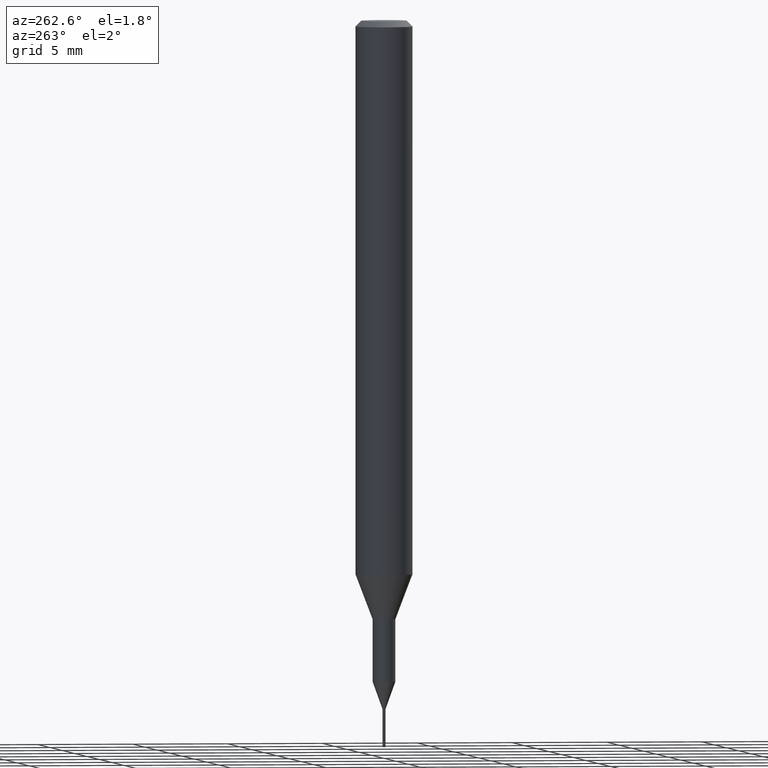
[diagram: clean part render]
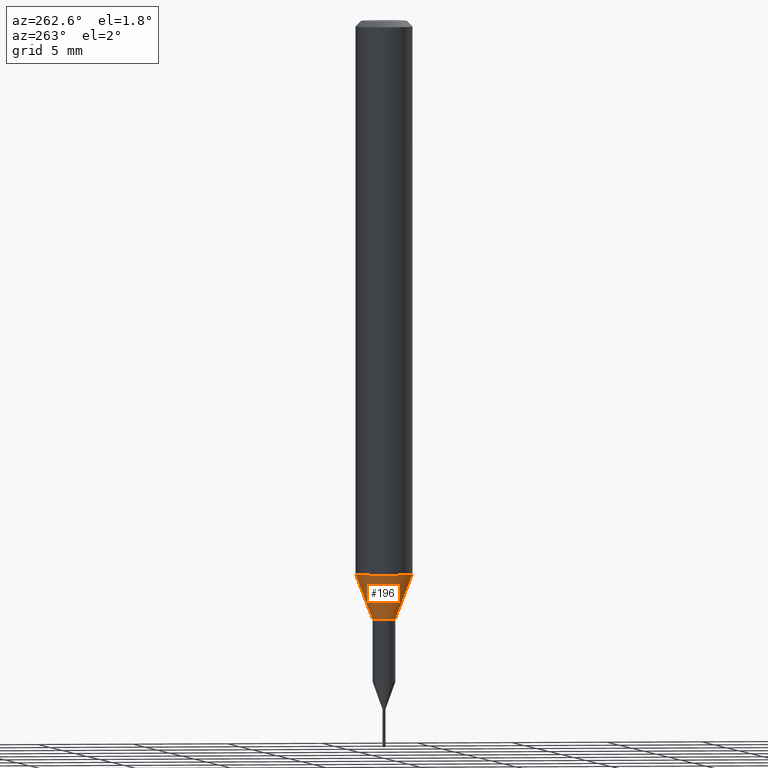
[diagram: same view with one face highlighted and labeled with its STEP entity id]
A machine part, auxiliary view. The second image highlights one B-rep face of the part: STEP entity #196.
In plain terms, the highlighted conical surface has half-angle 20.997 deg.
Its self-contained STEP definition (entity closure, byte-faithful):
#140=VERTEX_POINT('',#322);
#146=EDGE_CURVE('',#182,#218,#329,.T.);
#172=EDGE_CURVE('',#182,#262,#358,.T.);
#182=VERTEX_POINT('',#368);
#196=ADVANCED_FACE('',(#386),#387,.T.);
#204=EDGE_CURVE('',#218,#140,#396,.T.);
#206=EDGE_CURVE('',#140,#262,#398,.T.);
#218=VERTEX_POINT('',#411);
#262=VERTEX_POINT('',#459);
#322=CARTESIAN_POINT('',(0.0,1.5,-28.955));
#329=LINE('',#529,#530);
#358=CIRCLE('',#567,0.6);
#368=CARTESIAN_POINT('',(7.34763812293426E-017,-0.6,-31.3));
#386=FACE_OUTER_BOUND('',#601,.T.);
#387=CONICAL_SURFACE('',#602,1.05,0.366459241971866);
#396=CIRCLE('',#615,1.5);
#398=LINE('',#618,#619);
#411=CARTESIAN_POINT('',(1.83690953073357E-016,-1.5,-28.955));
#459=CARTESIAN_POINT('',(0.0,0.6,-31.3));
#529=CARTESIAN_POINT('',(1.2858366715135E-016,-1.05,-30.1275));
#530=VECTOR('',#765,1.0);
#567=AXIS2_PLACEMENT_3D('',#809,#810,#811);
#601=EDGE_LOOP('',(#845,#846,#847,#848));
#602=AXIS2_PLACEMENT_3D('',#849,#850,#851);
#615=AXIS2_PLACEMENT_3D('',#864,#865,#866);
#618=CARTESIAN_POINT('',(-1.2858366715135E-016,1.05,-30.1275));
#619=VECTOR('',#867,1.0);
#765=DIRECTION('',(4.38791184365088E-017,-0.358312026550805,0.93360189140182));
#809=CARTESIAN_POINT('',(0.0,0.0,-31.3));
#810=DIRECTION('',(0.0,0.0,-1.0));
#811=DIRECTION('',(0.0,1.0,0.0));
#845=ORIENTED_EDGE('',*,*,#206,.T.);
#846=ORIENTED_EDGE('',*,*,#172,.F.);
#847=ORIENTED_EDGE('',*,*,#146,.T.);
#848=ORIENTED_EDGE('',*,*,#204,.T.);
#849=CARTESIAN_POINT('',(0.0,0.0,-30.1275));
#850=DIRECTION('',(-0.0,-0.0,1.0));
#851=DIRECTION('',(0.0,1.0,0.0));
#864=CARTESIAN_POINT('',(0.0,0.0,-28.955));
#865=DIRECTION('',(0.0,0.0,-1.0));
#866=DIRECTION('',(0.0,1.0,0.0));
#867=DIRECTION('',(4.38791184365088E-017,-0.358312026550805,-0.93360189140182));